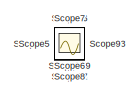
[diagram: root canvas - part 1/5, top left region]
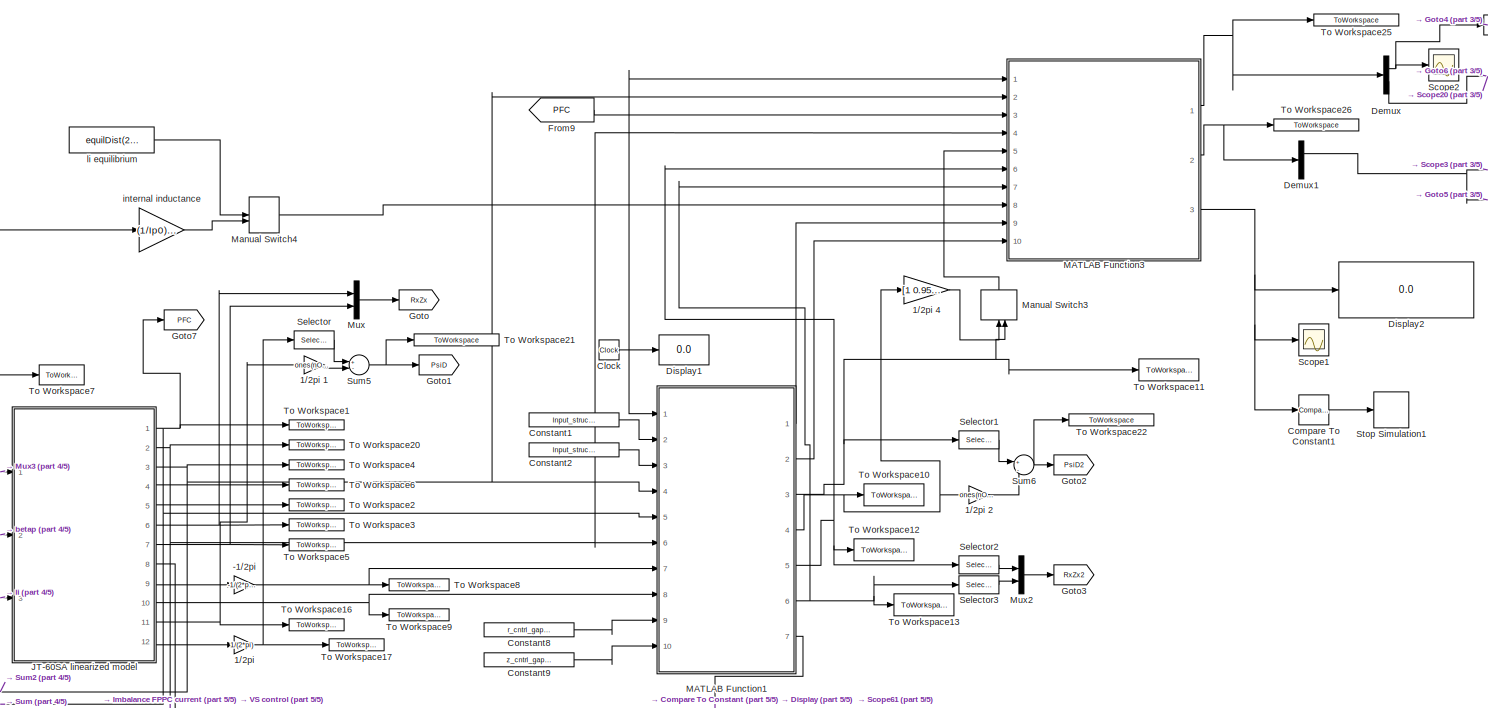
[diagram: root canvas - part 2/5, middle right region]
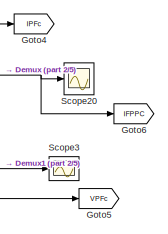
[diagram: root canvas - part 3/5, middle right region]
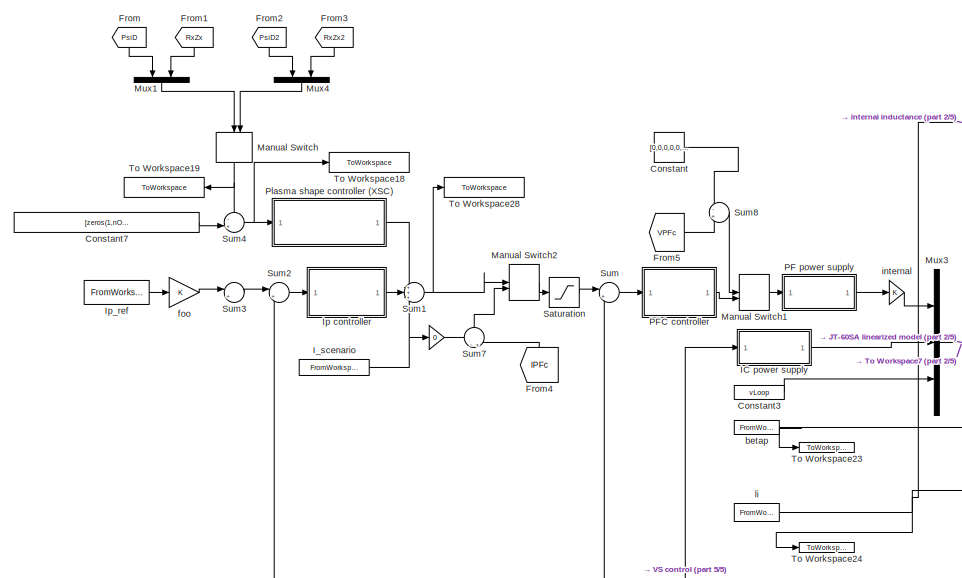
[diagram: root canvas - part 4/5, middle left region]
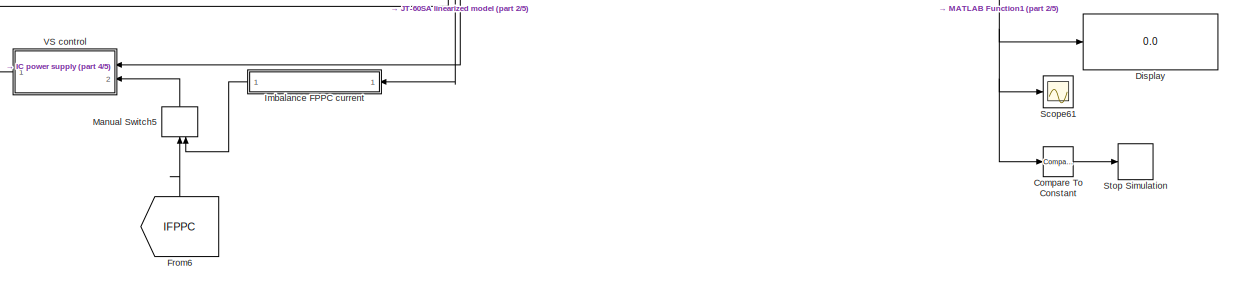
[diagram: root canvas - part 5/5, bottom center region]
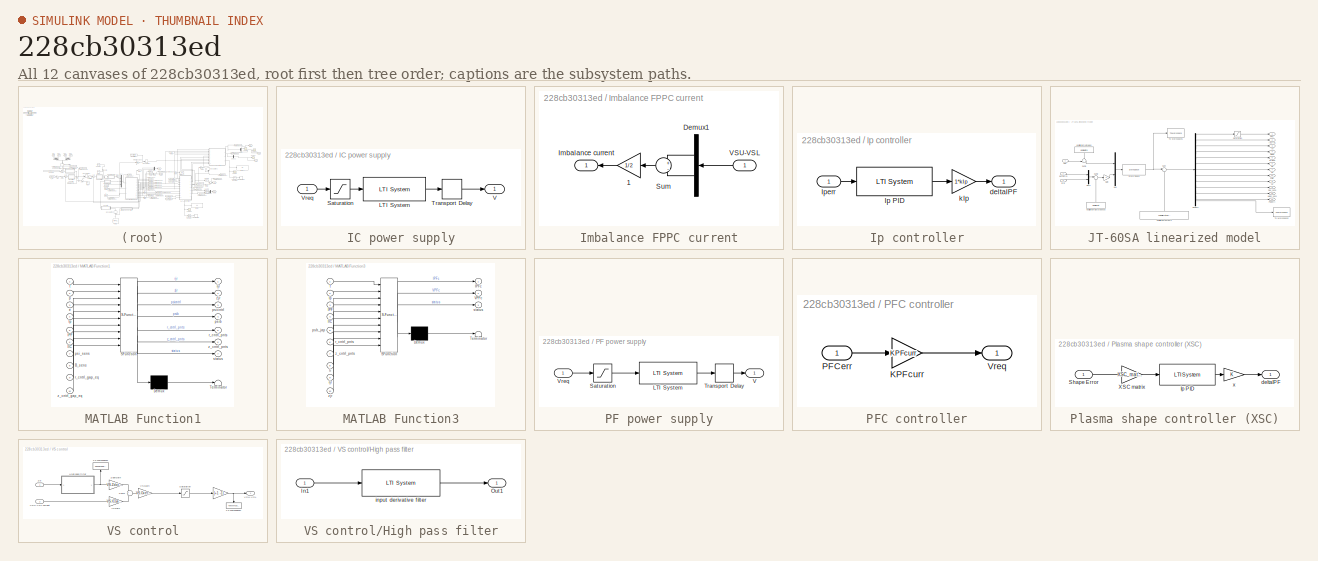
[diagram: thumbnail index - all 12 canvases of the model, root first then tree order]
MODEL slx_228cb30313ed
KIND model
CONFIG AbsTol = auto
CONFIG EnableMultiTasking = off
CONFIG FixedStep = auto
CONFIG MaxStep = auto
CONFIG MinStep = auto
CONFIG RelTol = 1e-3
CONFIG SampleTimeConstraint = Unconstrained
CONFIG Solver = VariableStepAuto
CONFIG SolverName = VariableStepAuto
CONFIG StartFcn = coder.extrinsic('system');\n system('./run4.csh')\n\n\n\n%disp('Called of the 1st part of the run.csh')
CONFIG StartTime = startTime-neg_time
CONFIG StopTime = stopTime
BLOCK [Gain]  
  Gain = 0
  OutDataTypeStr = Inherit: Inherit via internal rule
  ParamDataTypeStr = Inherit: Inherit via internal rule
  SaturateOnIntegerOverflow = off
BLOCK [Gain]  internal 
  OutDataTypeStr = Inherit: Inherit via internal rule
  ParamDataTypeStr = Inherit: Inherit via internal rule
  SaturateOnIntegerOverflow = off
BLOCK [Gain]  internal inductance
  Gain = (1/Ip0)+0*(4*pi*1e-7*2.97)/(2*Ip0)
  OutDataTypeStr = Inherit: Inherit via internal rule
  ParamDataTypeStr = Inherit: Inherit via internal rule
  SaturateOnIntegerOverflow = off
BLOCK [Gain] -1//2pi
  Gain = -1/(2*pi)
  OutDataTypeStr = Inherit: Inherit via internal rule
  ParamDataTypeStr = Inherit: Inherit via internal rule
  SaturateOnIntegerOverflow = off
BLOCK [Gain] 1//2pi 
  Gain = 1/(2*pi)
  OutDataTypeStr = Inherit: Inherit via internal rule
  ParamDataTypeStr = Inherit: Inherit via internal rule
  SaturateOnIntegerOverflow = off
BLOCK [Gain] 1//2pi 1
  Gain = ones(nOfFluxCntrl-1,1)
  OutDataTypeStr = Inherit: Inherit via internal rule
  ParamDataTypeStr = Inherit: Inherit via internal rule
  SaturateOnIntegerOverflow = off
BLOCK [Gain] 1//2pi 2
  Gain = ones(nOfFluxCntrl-1,1)
  OutDataTypeStr = Inherit: Inherit via internal rule
  ParamDataTypeStr = Inherit: Inherit via internal rule
  SaturateOnIntegerOverflow = off
BLOCK [Gain] 1//2pi 4
  Gain = [1 0.95 1 1 1 1 1 1 1]
  OutDataTypeStr = Inherit: Inherit via internal rule
  ParamDataTypeStr = Inherit: Inherit via internal rule
  SaturateOnIntegerOverflow = off
BLOCK [Clock] Clock
BLOCK [Reference] Compare To Constant  REF=simulink/Logic and Bit
Operations/Compare
To Constant
  Ports = [1, 1]
  SourceBlock = simulink/Logic and Bit\nOperations/Compare\nTo Constant
  SourceProductBaseCode = SL
  SourceProductName = Simulink
  SourceType = Compare To Constant
BLOCK [Reference] Compare To Constant1  REF=simulink/Logic and Bit
Operations/Compare
To Constant
  Ports = [1, 1]
  SourceBlock = simulink/Logic and Bit\nOperations/Compare\nTo Constant
  SourceProductBaseCode = SL
  SourceProductName = Simulink
  SourceType = Compare To Constant
BLOCK [Constant] Constant
  Value = [0,0,0,0,0,0,0,0,0,0]
BLOCK [Constant] Constant1
  Value = Input_struct.p
BLOCK [Constant] Constant2
  Value = Input_struct.e
BLOCK [Constant] Constant3
  Value = vLoop
BLOCK [Constant] Constant7
  Value = [zeros(1,nOfFluxCntrl-1) equilRxZx(1:2)']
BLOCK [Constant] Constant8
  Value = r_cntrl_gap_eq
BLOCK [Constant] Constant9
  Value = z_cntrl_gap_eq
BLOCK [Demux] Demux
  DisplayOption = bar
  Outputs = [10 2]
  Ports = [1, 2]
BLOCK [Demux] Demux1
  DisplayOption = bar
  Outputs = [10 2]
  Ports = [1, 2]
BLOCK [Display] Display
  Decimation = 1
  Ports = [1]
BLOCK [Display] Display1
  Decimation = 1
  Ports = [1]
BLOCK [Display] Display2
  Decimation = 1
  Ports = [1]
BLOCK [From] From
  GotoTag = PsiD
BLOCK [From] From1
  GotoTag = RxZx
BLOCK [From] From2
  GotoTag = PsiD2
BLOCK [From] From3
  GotoTag = RxZx2
BLOCK [From] From4
  GotoTag = IPFc
BLOCK [From] From5
  GotoTag = VPFc
BLOCK [From] From6
  GotoTag = IFPPC
BLOCK [From] From9
  GotoTag = PFC
BLOCK [Goto] Goto
  GotoTag = RxZx
BLOCK [Goto] Goto1
  GotoTag = PsiD
BLOCK [Goto] Goto2
  GotoTag = PsiD2
BLOCK [Goto] Goto3
  GotoTag = RxZx2
BLOCK [Goto] Goto4
  GotoTag = IPFc
BLOCK [Goto] Goto5
  GotoTag = VPFc
BLOCK [Goto] Goto6
  GotoTag = IFPPC
BLOCK [Goto] Goto7
  GotoTag = PFC
BLOCK [SubSystem] IC power supply
  Ports = [1, 1]
  RequestExecContextInheritance = off
BLOCK [Reference] IC power supply/LTI System  REF=cstblocks/LTI System
  Ports = [1, 1]
  SourceBlock = cstblocks/LTI System
  SourceProductBaseCode = CT
  SourceProductName = Control System Toolbox
  SourceType = LTI Block
BLOCK [Saturate] IC power supply/Saturation
  InputPortMap = u0
  LowerLimit = [-1e3 -1e3]
  Ports = [1, 1]
  UpperLimit = [1e3 1e3]
BLOCK [TransportDelay] IC power supply/Transport Delay
  DelayTime = PSdelay
  Ports = [1, 1]
BLOCK [Outport] IC power supply/V
  IconDisplay = Port number
BLOCK [Inport] IC power supply/Vreq
  IconDisplay = Port number
BLOCK [FromWorkspace] I_scenario
  OutputAfterFinalValue = Holding final value
  SampleTime = 0
  VariableName = IPF_scenario
  ZeroCross = on
BLOCK [SubSystem] Imbalance FPPC current
  Ports = [1, 1]
  RequestExecContextInheritance = off
BLOCK [Gain] Imbalance FPPC current/    1
  Gain = 1/2
  OutDataTypeStr = Inherit: Inherit via internal rule
  ParamDataTypeStr = Inherit: Inherit via internal rule
  SaturateOnIntegerOverflow = off
BLOCK [Demux] Imbalance FPPC current/Demux1
  DisplayOption = bar
  Outputs = 2
  Ports = [1, 2]
BLOCK [Outport] Imbalance FPPC current/Imbalance current
  IconDisplay = Port number
BLOCK [Sum] Imbalance FPPC current/Sum
  IconShape = round
  InputSameDT = off
  Inputs = +|-
  OutDataTypeStr = Inherit: Inherit via internal rule
  Ports = [2, 1]
  SaturateOnIntegerOverflow = off
BLOCK [Inport] Imbalance FPPC current/VSU-VSL
  IconDisplay = Port number
BLOCK [SubSystem] Ip controller
  Ports = [1, 1]
  RequestExecContextInheritance = off
BLOCK [Reference] Ip controller/Ip PID  REF=cstblocks/LTI System
  Ports = [1, 1]
  SourceBlock = cstblocks/LTI System
  SourceProductBaseCode = CT
  SourceProductName = Control System Toolbox
  SourceType = LTI Block
BLOCK [Inport] Ip controller/Iperr
  IconDisplay = Port number
BLOCK [Outport] Ip controller/deltaIPF
  IconDisplay = Port number
BLOCK [Gain] Ip controller/kIp
  Gain = 1*kIp
  Multiplication = Matrix(K*u)
  OutDataTypeStr = Inherit: Inherit via internal rule
  ParamDataTypeStr = Inherit: Inherit via internal rule
  SaturateOnIntegerOverflow = off
BLOCK [FromWorkspace] Ip_ref
  OutputAfterFinalValue = Holding final value
  SampleTime = 0
  VariableName = Ip_ref
  ZeroCross = on
BLOCK [SubSystem] JT-60SA linearized model
  Ports = [3, 12]
  RequestExecContextInheritance = off
BLOCK [Demux] JT-60SA linearized model/Demux1
  DisplayOption = bar
  Outputs = [10 2 1 nOfGaps nOfStrikes 1 1 1 1 nOfFluxSens nOfMagneticSens nOfFluxCntrl nXSC]
  Ports = [1, 13]
BLOCK [Outport] JT-60SA linearized model/Flux_sens
  IconDisplay = Port number
  Port = 9
BLOCK [Gain] JT-60SA linearized model/Gain
  Gain = 0
  OutDataTypeStr = Inherit: Inherit via internal rule
  ParamDataTypeStr = Inherit: Inherit via internal rule
  SaturateOnIntegerOverflow = off
BLOCK [Outport] JT-60SA linearized model/Gaps
  IconDisplay = Port number
  Port = 4
BLOCK [Outport] JT-60SA linearized model/ISU-ISL
  IconDisplay = Port number
  Port = 2
BLOCK [Outport] JT-60SA linearized model/Ip
  IconDisplay = Port number
  Port = 3
BLOCK [Outport] JT-60SA linearized model/Magn_sens
  IconDisplay = Port number
  Port = 10
BLOCK [Mux] JT-60SA linearized model/Mux
  DisplayOption = bar
  Inputs = 2
  Ports = [2, 1]
BLOCK [Mux] JT-60SA linearized model/Mux1
  DisplayOption = bar
  Inputs = 2
  Ports = [2, 1]
BLOCK [Outport] JT-60SA linearized model/PFC
  IconDisplay = Port number
BLOCK [Outport] JT-60SA linearized model/PsiB
  IconDisplay = Port number
  Port = 11
BLOCK [Outport] JT-60SA linearized model/PsiCntrl
  IconDisplay = Port number
  Port = 12
BLOCK [Outport] JT-60SA linearized model/Rx
  IconDisplay = Port number
  Port = 6
BLOCK [Saturate] JT-60SA linearized model/Saturation
  InputPortMap = u0
  LowerLimit = I_sat_lower
  Ports = [1, 1]
  UpperLimit = I_sat_upper
BLOCK [StateSpace] JT-60SA linearized model/State-Space
  A = A_contr
  B = B_contr
  C = [C_contr; C_XSC_full]
  D = [D_contr; zeros(nXSC,size(D_contr,2))]
  InitialCondition = xi0
  Ports = [1, 1]
BLOCK [Outport] JT-60SA linearized model/Strikes
  IconDisplay = Port number
  Port = 5
BLOCK [Sum] JT-60SA linearized model/Sum
  IconShape = round
  InputSameDT = off
  Inputs = |++
  OutDataTypeStr = Inherit: Inherit via internal rule
  Ports = [2, 1]
  SaturateOnIntegerOverflow = off
BLOCK [Sum] JT-60SA linearized model/Sum2
  IconShape = round
  InputSameDT = off
  Inputs = |+-
  OutDataTypeStr = Inherit: Inherit via internal rule
  Ports = [2, 1]
  SaturateOnIntegerOverflow = off
BLOCK [Sum] JT-60SA linearized model/Sum3
  IconShape = round
  InputSameDT = off
  Inputs = -+|
  OutDataTypeStr = Inherit: Inherit via internal rule
  Ports = [2, 1]
  SaturateOnIntegerOverflow = off
BLOCK [ToWorkspace] JT-60SA linearized model/To Workspace1
  FixptAsFi = on
  MaxDataPoints = inf
  Ports = [1]
  SampleTime = -1
  Save2DSignal = 3-D array (concatenate along third dimension)
  SaveFormat = Structure With Time
  VariableName = deltaOutputs
BLOCK [ToWorkspace] JT-60SA linearized model/To Workspace2
  FixptAsFi = on
  MaxDataPoints = inf
  Ports = [1]
  SampleTime = -1
  Save2DSignal = 3-D array (concatenate along third dimension)
  SaveFormat = Structure With Time
  VariableName = simXSCout1
BLOCK [Inport] JT-60SA linearized model/VPF
  IconDisplay = Port number
BLOCK [Outport] JT-60SA linearized model/Zc
  IconDisplay = Port number
  Port = 8
BLOCK [Outport] JT-60SA linearized model/Zx
  IconDisplay = Port number
  Port = 7
BLOCK [Inport] JT-60SA linearized model/betap*Ip
  IconDisplay = Port number
  Port = 2
BLOCK [Constant] JT-60SA linearized model/equilibrium disturbances
  Value = equilDist
BLOCK [Constant] JT-60SA linearized model/equilibrium outputs
  Value = [equilOutputs; eqXSC]
BLOCK [Constant] JT-60SA linearized model/equilibrium voltages
  Value = equilVolts
BLOCK [Inport] JT-60SA linearized model/li*Ip
  IconDisplay = Port number
  Port = 3
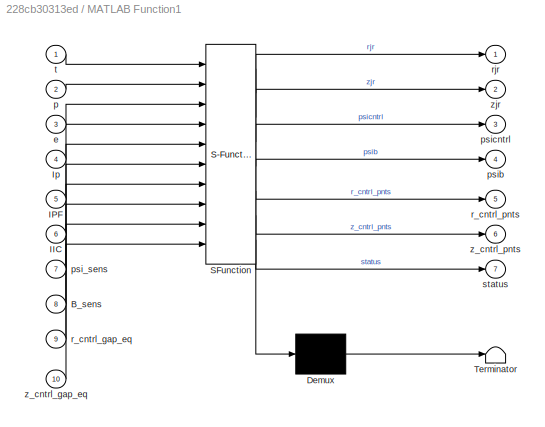
BLOCK [SubSystem] MATLAB Function1
  Description = CCS
  ErrorFcn = Stateflow.Translate.translate
  PermitHierarchicalResolution = ExplicitOnly
  Ports = [10, 7]
  RequestExecContextInheritance = off
  SFBlockType = MATLAB Function
  StartFcn = close all\nfigure(1)
  SystemSampleTime = 10e-3
  TreatAsAtomicUnit = on
BLOCK [Demux] MATLAB Function1/ Demux 
  Outputs = 1
  Ports = [1, 1]
BLOCK [S-Function] MATLAB Function1/ SFunction 
  EnableBusSupport = on
  FunctionName = sf_sfun
  PortCounts = [10 8]
  Ports = [10, 8]
  SFcnIsStateOwnerBlock = off
  SFunctionDeploymentMode = off
  Tag = Stateflow S-Function JT_60SA_scheme_isoflux_CCS_FBC 1
BLOCK [Terminator] MATLAB Function1/ Terminator 
BLOCK [Inport] MATLAB Function1/B_sens
  IconDisplay = Port number
  Port = 8
BLOCK [Inport] MATLAB Function1/IIC
  IconDisplay = Port number
  Port = 6
BLOCK [Inport] MATLAB Function1/IPF
  IconDisplay = Port number
  Port = 5
BLOCK [Inport] MATLAB Function1/Ip
  IconDisplay = Port number
  Port = 4
BLOCK [Inport] MATLAB Function1/e
  IconDisplay = Port number
  Port = 3
BLOCK [Inport] MATLAB Function1/p
  IconDisplay = Port number
  Port = 2
BLOCK [Inport] MATLAB Function1/psi_sens
  IconDisplay = Port number
  Port = 7
BLOCK [Outport] MATLAB Function1/psib
  IconDisplay = Port number
  Port = 4
BLOCK [Outport] MATLAB Function1/psicntrl
  IconDisplay = Port number
  Port = 3
BLOCK [Inport] MATLAB Function1/r_cntrl_gap_eq
  IconDisplay = Port number
  Port = 9
BLOCK [Outport] MATLAB Function1/r_cntrl_pnts
  IconDisplay = Port number
  Port = 5
BLOCK [Outport] MATLAB Function1/rjr
  IconDisplay = Port number
BLOCK [Outport] MATLAB Function1/status
  IconDisplay = Port number
  Port = 7
BLOCK [Inport] MATLAB Function1/t
  IconDisplay = Port number
BLOCK [Inport] MATLAB Function1/z_cntrl_gap_eq
  IconDisplay = Port number
  Port = 10
BLOCK [Outport] MATLAB Function1/z_cntrl_pnts
  IconDisplay = Port number
  Port = 6
BLOCK [Outport] MATLAB Function1/zjr
  IconDisplay = Port number
  Port = 2
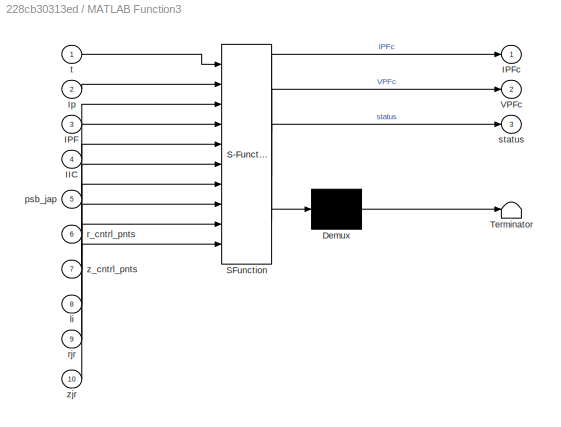
BLOCK [SubSystem] MATLAB Function3
  Description = CCS
  ErrorFcn = Stateflow.Translate.translate
  PermitHierarchicalResolution = ExplicitOnly
  Ports = [10, 3]
  RequestExecContextInheritance = off
  SFBlockType = MATLAB Function
  StartFcn = close all\nfigure(1)
  SystemSampleTime = 10e-3
  TreatAsAtomicUnit = on
BLOCK [Demux] MATLAB Function3/ Demux 
  Outputs = 1
  Ports = [1, 1]
BLOCK [S-Function] MATLAB Function3/ SFunction 
  EnableBusSupport = on
  FunctionName = sf_sfun
  PortCounts = [10 4]
  Ports = [10, 4]
  SFcnIsStateOwnerBlock = off
  SFunctionDeploymentMode = off
  Tag = Stateflow S-Function JT_60SA_scheme_isoflux_CCS_FBC 4
BLOCK [Terminator] MATLAB Function3/ Terminator 
BLOCK [Inport] MATLAB Function3/IIC
  IconDisplay = Port number
  Port = 4
BLOCK [Inport] MATLAB Function3/IPF
  IconDisplay = Port number
  Port = 3
BLOCK [Outport] MATLAB Function3/IPFc
  IconDisplay = Port number
BLOCK [Inport] MATLAB Function3/Ip
  IconDisplay = Port number
  Port = 2
BLOCK [Outport] MATLAB Function3/VPFc
  IconDisplay = Port number
  Port = 2
BLOCK [Inport] MATLAB Function3/li
  IconDisplay = Port number
  Port = 8
BLOCK [Inport] MATLAB Function3/psb_jap
  IconDisplay = Port number
  Port = 5
BLOCK [Inport] MATLAB Function3/r_cntrl_pnts
  IconDisplay = Port number
  Port = 6
BLOCK [Inport] MATLAB Function3/rjr
  IconDisplay = Port number
  Port = 9
BLOCK [Outport] MATLAB Function3/status
  IconDisplay = Port number
  Port = 3
BLOCK [Inport] MATLAB Function3/t
  IconDisplay = Port number
BLOCK [Inport] MATLAB Function3/z_cntrl_pnts
  IconDisplay = Port number
  Port = 7
BLOCK [Inport] MATLAB Function3/zjr
  IconDisplay = Port number
  Port = 10
BLOCK [ManualSwitch] Manual Switch
  CurrentSetting = 0
BLOCK [ManualSwitch] Manual Switch1
BLOCK [ManualSwitch] Manual Switch2
  CurrentSetting = 0
BLOCK [ManualSwitch] Manual Switch3
  CurrentSetting = 0
BLOCK [ManualSwitch] Manual Switch4
BLOCK [ManualSwitch] Manual Switch5
BLOCK [Mux] Mux
  DisplayOption = bar
  Inputs = 2
  Ports = [2, 1]
BLOCK [Mux] Mux1
  DisplayOption = bar
  Inputs = [nOfFluxCntrl-1 2]
  Ports = [2, 1]
BLOCK [Mux] Mux2
  DisplayOption = bar
  Inputs = 2
  Ports = [2, 1]
BLOCK [Mux] Mux3
  DisplayOption = bar
  Inputs = 3
  Ports = [3, 1]
BLOCK [Mux] Mux4
  DisplayOption = bar
  Inputs = [nOfFluxCntrl-1 2]
  Ports = [2, 1]
BLOCK [SubSystem] PF power supply
  Ports = [1, 1]
  RequestExecContextInheritance = off
BLOCK [Reference] PF power supply/LTI System  REF=cstblocks/LTI System
  Ports = [1, 1]
  SourceBlock = cstblocks/LTI System
  SourceProductBaseCode = CT
  SourceProductName = Control System Toolbox
  SourceType = LTI Block
BLOCK [Saturate] PF power supply/Saturation
  InputPortMap = u0
  LowerLimit = -[CSsat EFsat]
  Ports = [1, 1]
  UpperLimit = [CSsat EFsat]
BLOCK [TransportDelay] PF power supply/Transport Delay
  DelayTime = PSdelay
  Ports = [1, 1]
BLOCK [Outport] PF power supply/V
  IconDisplay = Port number
BLOCK [Inport] PF power supply/Vreq
  IconDisplay = Port number
BLOCK [SubSystem] PFC controller
  Ports = [1, 1]
  RequestExecContextInheritance = off
BLOCK [Gain] PFC controller/KPFcurr
  Gain = KPFcurr
  Multiplication = Matrix(K*u)
  OutDataTypeStr = Inherit: Inherit via internal rule
  ParamDataTypeStr = Inherit: Inherit via internal rule
  SaturateOnIntegerOverflow = off
BLOCK [Inport] PFC controller/PFCerr
  IconDisplay = Port number
BLOCK [Outport] PFC controller/Vreq
  IconDisplay = Port number
BLOCK [SubSystem] Plasma shape controller (XSC)
  Ports = [1, 1]
  RequestExecContextInheritance = off
BLOCK [Reference] Plasma shape controller (XSC)/Ip PID  REF=cstblocks/LTI System
  Ports = [1, 1]
  SourceBlock = cstblocks/LTI System
  SourceProductBaseCode = CT
  SourceProductName = Control System Toolbox
  SourceType = LTI Block
BLOCK [Inport] Plasma shape controller (XSC)/Shape Error
  IconDisplay = Port number
BLOCK [Gain] Plasma shape controller (XSC)/XSC matrix
  Gain = XSC_matrix
  Multiplication = Matrix(K*u)
  OutDataTypeStr = Inherit: Inherit via internal rule
  ParamDataTypeStr = Inherit: Inherit via internal rule
  SaturateOnIntegerOverflow = off
BLOCK [Outport] Plasma shape controller (XSC)/deltaIPF
  IconDisplay = Port number
BLOCK [Gain] Plasma shape controller (XSC)/x
  OutDataTypeStr = Inherit: Inherit via internal rule
  ParamDataTypeStr = Inherit: Inherit via internal rule
  SaturateOnIntegerOverflow = off
BLOCK [Saturate] Saturation
  InputPortMap = u0
  LowerLimit = I_sat_lower
  Ports = [1, 1]
  UpperLimit = I_sat_upper
BLOCK [Scope] Scope
  Floating = off
  IOType = viewer
  NumInputPorts = 1
  Ports = []
  ScopeSpecificationString = Simulink.scopes.TimeScopeBlockCfg('CurrentConfiguration', extmgr.ConfigurationSet(extmgr.Configuration('Core','General UI',true),extmgr.Configuration('Core','Source UI',true),extmgr.Configuration('Sources','WiredSimulink',true,'DataLoggingVariableName','ScopeData1'),extmgr.Configuration('Visuals','Time Domain',true,'SerializedDisplays',{struct('MinYLimReal','-21421.52997','MaxYLimReal','18313.7697...<+1750ch>
BLOCK [Scope] Scope1
  Floating = off
  NumInputPorts = 1
  Ports = [1]
  ScopeSpecificationString = Simulink.scopes.TimeScopeBlockCfg('CurrentConfiguration', extmgr.ConfigurationSet(extmgr.Configuration('Core','General UI',true),extmgr.Configuration('Core','Source UI',true),extmgr.Configuration('Sources','WiredSimulink',true,'DataLoggingVariableName','ScopeData1'),extmgr.Configuration('Visuals','Time Domain',true,'SerializedDisplays',{struct('MinYLimReal','-0.125','MaxYLimReal','1.125','YLabelRe...<+1424ch>
BLOCK [Scope] Scope10
  Floating = off
  IOType = viewer
  NumInputPorts = 1
  Ports = []
  ScopeSpecificationString = Simulink.scopes.TimeScopeBlockCfg('CurrentConfiguration', extmgr.ConfigurationSet(extmgr.Configuration('Core','General UI',true),extmgr.Configuration('Core','Source UI',true),extmgr.Configuration('Sources','WiredSimulink',true,'DataLoggingVariableName','ScopeData8'),extmgr.Configuration('Visuals','Time Domain',true,'SerializedDisplays',{struct('MinYLimReal','1.47395','MaxYLimReal','4.46545','YLabe...<+1714ch>
BLOCK [Scope] Scope11
  Floating = off
  IOType = viewer
  NumInputPorts = 1
  Ports = []
  ScopeSpecificationString = Simulink.scopes.TimeScopeBlockCfg('CurrentConfiguration', extmgr.ConfigurationSet(extmgr.Configuration('Core','General UI',true),extmgr.Configuration('Core','Source UI',true),extmgr.Configuration('Sources','WiredSimulink',true,'DataLoggingVariableName','ScopeData9'),extmgr.Configuration('Visuals','Time Domain',true,'SerializedDisplays',{struct('MinYLimReal','-0.04361','MaxYLimReal','0.06659','YLab...<+1434ch>
BLOCK [Scope] Scope12
  Floating = off
  IOType = viewer
  NumInputPorts = 1
  Ports = []
  ScopeSpecificationString = Simulink.scopes.TimeScopeBlockCfg('CurrentConfiguration', extmgr.ConfigurationSet(extmgr.Configuration('Core','General UI',true),extmgr.Configuration('Core','Source UI',true),extmgr.Configuration('Sources','WiredSimulink',true,'DataLoggingVariableName','ScopeData10'),extmgr.Configuration('Visuals','Time Domain',true,'SerializedDisplays',{struct('MinYLimReal','-0.2146','MaxYLimReal','0.13116','YLab...<+1676ch>
BLOCK [Scope] Scope13
  Floating = off
  IOType = viewer
  NumInputPorts = 1
  Ports = []
  ScopeSpecificationString = Simulink.scopes.TimeScopeBlockCfg('CurrentConfiguration', extmgr.ConfigurationSet(extmgr.Configuration('Core','General UI',true),extmgr.Configuration('Core','Source UI',true),extmgr.Configuration('Sources','WiredSimulink',true,'DataLoggingVariableName','ScopeData11'),extmgr.Configuration('Visuals','Time Domain',true,'SerializedDisplays',{struct('MinYLimReal','2.95296','MaxYLimReal','3.02377','YLab...<+1403ch>
BLOCK [Scope] Scope14
  Floating = off
  IOType = viewer
  NumInputPorts = 1
  Ports = []
  ScopeSpecificationString = Simulink.scopes.TimeScopeBlockCfg('CurrentConfiguration', extmgr.ConfigurationSet(extmgr.Configuration('Core','General UI',true),extmgr.Configuration('Core','Source UI',true),extmgr.Configuration('Sources','WiredSimulink',true,'DataLoggingVariableName','ScopeData12'),extmgr.Configuration('Visuals','Time Domain',true,'SerializedDisplays',{struct('MinYLimReal','0.01174','MaxYLimReal','0.07796','YLab...<+1432ch>
BLOCK [Scope] Scope15
  Floating = off
  IOType = viewer
  NumInputPorts = 1
  Ports = []
  ScopeSpecificationString = Simulink.scopes.TimeScopeBlockCfg('CurrentConfiguration', extmgr.ConfigurationSet(extmgr.Configuration('Core','General UI',true),extmgr.Configuration('Core','Source UI',true),extmgr.Configuration('Sources','WiredSimulink',true,'DataLoggingVariableName','ScopeData13'),extmgr.Configuration('Visuals','Time Domain',true,'SerializedDisplays',{struct('MinYLimReal','0.75383','MaxYLimReal','0.95383','YLab...<+1461ch>
BLOCK [Scope] Scope16
  Floating = off
  IOType = viewer
  NumInputPorts = 1
  Ports = []
  ScopeSpecificationString = Simulink.scopes.TimeScopeBlockCfg('CurrentConfiguration', extmgr.ConfigurationSet(extmgr.Configuration('Core','General UI',true),extmgr.Configuration('Core','Source UI',true),extmgr.Configuration('Sources','WiredSimulink',true,'DataLoggingVariableName','ScopeData14'),extmgr.Configuration('Visuals','Time Domain',true,'SerializedDisplays',{struct('MinYLimReal','0.77419','MaxYLimReal','0.86268','YLab...<+1432ch>
BLOCK [Scope] Scope17
  Floating = off
  IOType = viewer
  NumInputPorts = 1
  Ports = []
  ScopeSpecificationString = Simulink.scopes.TimeScopeBlockCfg('CurrentConfiguration', extmgr.ConfigurationSet(extmgr.Configuration('Core','General UI',true),extmgr.Configuration('Core','Source UI',true),extmgr.Configuration('Sources','WiredSimulink',true,'DataLoggingVariableName','ScopeData15'),extmgr.Configuration('Visuals','Time Domain',true,'SerializedDisplays',{struct('MinYLimReal','-1625.00000','MaxYLimReal','1625.00000...<+1585ch>
BLOCK [Scope] Scope18
  Floating = off
  IOType = viewer
  NumInputPorts = 1
  Ports = []
  ScopeSpecificationString = Simulink.scopes.TimeScopeBlockCfg('CurrentConfiguration', extmgr.ConfigurationSet(extmgr.Configuration('Core','General UI',true),extmgr.Configuration('Core','Source UI',true),extmgr.Configuration('Sources','WiredSimulink',true,'DataLoggingVariableName','ScopeData16'),extmgr.Configuration('Visuals','Time Domain',true,'SerializedDisplays',{struct('MinYLimReal','-22293.65425','MaxYLimReal','16915.312...<+1479ch>
BLOCK [Scope] Scope19
  Floating = off
  IOType = viewer
  NumInputPorts = 1
  Ports = []
  ScopeSpecificationString = Simulink.scopes.TimeScopeBlockCfg('CurrentConfiguration', extmgr.ConfigurationSet(extmgr.Configuration('Core','General UI',true),extmgr.Configuration('Core','Source UI',true),extmgr.Configuration('Sources','WiredSimulink',true,'DataLoggingVariableName','ScopeData17'),extmgr.Configuration('Visuals','Time Domain',true,'SerializedDisplays',{struct('MinYLimReal','-12319.32024','MaxYLimReal','8609.8238...<+1496ch>
BLOCK [Scope] Scope2
  Floating = off
  NumInputPorts = 1
  Ports = [1]
  ScopeSpecificationString = Simulink.scopes.TimeScopeBlockCfg('CurrentConfiguration', extmgr.ConfigurationSet(extmgr.Configuration('Core','General UI',true),extmgr.Configuration('Core','Source UI',true),extmgr.Configuration('Sources','WiredSimulink',true,'DataLoggingVariableName','ScopeData2'),extmgr.Configuration('Visuals','Time Domain',true,'SerializedDisplays',{struct('MinYLimReal','-20635.41361','MaxYLimReal','15476.2755...<+1579ch>
BLOCK [Scope] Scope20
  Floating = off
  NumInputPorts = 1
  Ports = [1]
  ScopeSpecificationString = Simulink.scopes.TimeScopeBlockCfg('CurrentConfiguration', extmgr.ConfigurationSet(extmgr.Configuration('Core','General UI',true),extmgr.Configuration('Core','Source UI',true),extmgr.Configuration('Sources','WiredSimulink',true,'DataLoggingVariableName','ScopeData3'),extmgr.Configuration('Visuals','Time Domain',true,'SerializedDisplays',{struct('MinYLimReal','-91.5089','MaxYLimReal','77.43313','YLa...<+1453ch>
BLOCK [Scope] Scope21
  Floating = off
  IOType = viewer
  NumInputPorts = 1
  Ports = []
  ScopeSpecificationString = Simulink.scopes.TimeScopeBlockCfg('CurrentConfiguration', extmgr.ConfigurationSet(extmgr.Configuration('Core','General UI',true),extmgr.Configuration('Core','Source UI',true),extmgr.Configuration('Sources','WiredSimulink',true,'DataLoggingVariableName','ScopeData18'),extmgr.Configuration('Visuals','Time Domain',true,'SerializedDisplays',{struct('MinYLimReal','-15601.17491','MaxYLimReal','8235.2404...<+1725ch>
BLOCK [Scope] Scope22
  Floating = off
  IOType = viewer
  NumInputPorts = 1
  Ports = []
  ScopeSpecificationString = Simulink.scopes.TimeScopeBlockCfg('CurrentConfiguration', extmgr.ConfigurationSet(extmgr.Configuration('Core','General UI',true),extmgr.Configuration('Core','Source UI',true),extmgr.Configuration('Sources','WiredSimulink',true,'DataLoggingVariableName','ScopeData19'),extmgr.Configuration('Visuals','Time Domain',true,'SerializedDisplays',{struct('MinYLimReal','-0.0994','MaxYLimReal','0.22872','YLab...<+1499ch>
BLOCK [Scope] Scope23
  Floating = off
  IOType = viewer
  NumInputPorts = 1
  Ports = []
  ScopeSpecificationString = Simulink.scopes.TimeScopeBlockCfg('CurrentConfiguration', extmgr.ConfigurationSet(extmgr.Configuration('Core','General UI',true),extmgr.Configuration('Core','Source UI',true),extmgr.Configuration('Sources','WiredSimulink',true,'DataLoggingVariableName','ScopeData20'),extmgr.Configuration('Visuals','Time Domain',true,'SerializedDisplays',{struct('MinYLimReal','2258258.56914','MaxYLimReal','2986872....<+1465ch>
BLOCK [Scope] Scope24
  Floating = off
  IOType = viewer
  NumInputPorts = 1
  Ports = []
  ScopeSpecificationString = Simulink.scopes.TimeScopeBlockCfg('CurrentConfiguration', extmgr.ConfigurationSet(extmgr.Configuration('Core','General UI',true),extmgr.Configuration('Core','Source UI',true),extmgr.Configuration('Sources','WiredSimulink',true,'DataLoggingVariableName','ScopeData21'),extmgr.Configuration('Visuals','Time Domain',true,'SerializedDisplays',{struct('MinYLimReal','4258052.4434','MaxYLimReal','4744728.0...<+1433ch>
BLOCK [Scope] Scope25
  Floating = off
  IOType = viewer
  NumInputPorts = 1
  Ports = []
  ScopeSpecificationString = Simulink.scopes.TimeScopeBlockCfg('CurrentConfiguration', extmgr.ConfigurationSet(extmgr.Configuration('Core','General UI',true),extmgr.Configuration('Core','Source UI',true),extmgr.Configuration('Sources','WiredSimulink',true,'DataLoggingVariableName','ScopeData22'),extmgr.Configuration('Visuals','Time Domain',true,'SerializedDisplays',{struct('MinYLimReal','-1624.99999','MaxYLimReal','1624.9999'...<+1494ch>
BLOCK [Scope] Scope26
  Floating = off
  IOType = viewer
  NumInputPorts = 1
  Ports = []
  ScopeSpecificationString = Simulink.scopes.TimeScopeBlockCfg('CurrentConfiguration', extmgr.ConfigurationSet(extmgr.Configuration('Core','General UI',true),extmgr.Configuration('Core','Source UI',true),extmgr.Configuration('Sources','WiredSimulink',true,'DataLoggingVariableName','ScopeData1'),extmgr.Configuration('Visuals','Time Domain',true,'SerializedDisplays',{struct('MinYLimReal','-872.69575','MaxYLimReal','872.69575','...<+1464ch>
BLOCK [Scope] Scope27
  Floating = off
  IOType = viewer
  NumInputPorts = 1
  Ports = []
  ScopeSpecificationString = Simulink.scopes.TimeScopeBlockCfg('CurrentConfiguration', extmgr.ConfigurationSet(extmgr.Configuration('Core','General UI',true),extmgr.Configuration('Core','Source UI',true),extmgr.Configuration('Sources','WiredSimulink',true,'DataLoggingVariableName','ScopeData1'),extmgr.Configuration('Visuals','Time Domain',true,'SerializedDisplays',{struct('MinYLimReal','0.01238','MaxYLimReal','0.0788','YLabel...<+1433ch>
BLOCK [Scope] Scope3
  Floating = off
  NumInputPorts = 1
  Ports = [1]
  ScopeSpecificationString = Simulink.scopes.TimeScopeBlockCfg('CurrentConfiguration', extmgr.ConfigurationSet(extmgr.Configuration('Core','General UI',true),extmgr.Configuration('Core','Source UI',true),extmgr.Configuration('Sources','WiredSimulink',true,'DataLoggingVariableName','ScopeData7'),extmgr.Configuration('Visuals','Time Domain',true,'SerializedDisplays',{struct('MinYLimReal','-305024.05838','MaxYLimReal','403018.70...<+1599ch>
BLOCK [Scope] Scope4
  Floating = off
  IOType = viewer
  NumInputPorts = 1
  Ports = []
  ScopeSpecificationString = Simulink.scopes.TimeScopeBlockCfg('CurrentConfiguration', extmgr.ConfigurationSet(extmgr.Configuration('Core','General UI',true),extmgr.Configuration('Core','Source UI',true),extmgr.Configuration('Sources','WiredSimulink',true,'DataLoggingVariableName','ScopeData2'),extmgr.Configuration('Visuals','Time Domain',true,'SerializedDisplays',{struct('MinYLimReal','-6275.87196','MaxYLimReal','6751.43153'...<+1494ch>
BLOCK [Scope] Scope5
  Floating = off
  IOType = viewer
  NumInputPorts = 1
  Ports = []
  ScopeSpecificationString = Simulink.scopes.TimeScopeBlockCfg('CurrentConfiguration', extmgr.ConfigurationSet(extmgr.Configuration('Core','General UI',true),extmgr.Configuration('Core','Source UI',true),extmgr.Configuration('Sources','WiredSimulink',true,'DataLoggingVariableName','ScopeData3'),extmgr.Configuration('Visuals','Time Domain',true,'SerializedDisplays',{struct('MinYLimReal','5380616.70355','MaxYLimReal','5753223.8...<+1485ch>
BLOCK [Scope] Scope6
  Floating = off
  IOType = viewer
  NumInputPorts = 1
  Ports = []
  ScopeSpecificationString = Simulink.scopes.TimeScopeBlockCfg('CurrentConfiguration', extmgr.ConfigurationSet(extmgr.Configuration('Core','General UI',true),extmgr.Configuration('Core','Source UI',true),extmgr.Configuration('Sources','WiredSimulink',true,'DataLoggingVariableName','ScopeData4'),extmgr.Configuration('Visuals','Time Domain',true,'SerializedDisplays',{struct('MinYLimReal','-0.07073','MaxYLimReal','0.93547','YLab...<+4120ch>
BLOCK [Scope] Scope61
  Floating = off
  NumInputPorts = 1
  Ports = [1]
  ScopeSpecificationString = Simulink.scopes.TimeScopeBlockCfg('CurrentConfiguration', extmgr.ConfigurationSet(extmgr.Configuration('Core','General UI',true),extmgr.Configuration('Core','Source UI',true),extmgr.Configuration('Sources','WiredSimulink',true),extmgr.Configuration('Visuals','Time Domain',true,'SerializedDisplays',{struct('MinYLimReal','-0.125','MaxYLimReal','1.125','YLabelReal','','MinYLimMag','0.00000','MaxYLimM...<+1385ch>
BLOCK [Scope] Scope7
  Floating = off
  IOType = viewer
  NumInputPorts = 1
  Ports = []
  ScopeSpecificationString = Simulink.scopes.TimeScopeBlockCfg('CurrentConfiguration', extmgr.ConfigurationSet(extmgr.Configuration('Core','General UI',true),extmgr.Configuration('Core','Source UI',true),extmgr.Configuration('Sources','WiredSimulink',true,'DataLoggingVariableName','ScopeData5'),extmgr.Configuration('Visuals','Time Domain',true,'SerializedDisplays',{struct('MinYLimReal','-0.04299','MaxYLimReal','0.06893','YLab...<+1440ch>
BLOCK [Scope] Scope8
  Floating = off
  IOType = viewer
  NumInputPorts = 1
  Ports = []
  ScopeSpecificationString = Simulink.scopes.TimeScopeBlockCfg('CurrentConfiguration', extmgr.ConfigurationSet(extmgr.Configuration('Core','General UI',true),extmgr.Configuration('Core','Source UI',true),extmgr.Configuration('Sources','WiredSimulink',true,'DataLoggingVariableName','ScopeData6'),extmgr.Configuration('Visuals','Time Domain',true,'SerializedDisplays',{struct('MinYLimReal','-1.41795','MaxYLimReal','0.84162','YLab...<+1698ch>
BLOCK [Scope] Scope9
  Floating = off
  IOType = viewer
  NumInputPorts = 1
  Ports = []
  ScopeSpecificationString = Simulink.scopes.TimeScopeBlockCfg('CurrentConfiguration', extmgr.ConfigurationSet(extmgr.Configuration('Core','General UI',true),extmgr.Configuration('Core','Source UI',true),extmgr.Configuration('Sources','WiredSimulink',true,'DataLoggingVariableName','ScopeData7'),extmgr.Configuration('Visuals','Time Domain',true,'SerializedDisplays',{struct('MinYLimReal','-3.16719','MaxYLimReal','1.95969','YLab...<+1716ch>
BLOCK [Selector] Selector
  IndexOptions = Index vector (dialog)
  Indices = [2:nOfFluxCntrl]
  InputPortWidth = nOfFluxCntrl
  OutputSizes = 1
  Ports = [1, 1]
BLOCK [Selector] Selector1
  IndexOptions = Index vector (dialog)
  Indices = [2:nOfFluxCntrl]
  InputPortWidth = nOfFluxCntrl
  OutputSizes = 1
  Ports = [1, 1]
BLOCK [Selector] Selector2
  IndexOptions = Index vector (dialog)
  Indices = 1
  InputPortWidth = nOfFluxCntrl
  OutputSizes = 1
  Ports = [1, 1]
BLOCK [Selector] Selector3
  IndexOptions = Index vector (dialog)
  Indices = 1
  InputPortWidth = nOfFluxCntrl
  OutputSizes = 1
  Ports = [1, 1]
BLOCK [Stop] Stop Simulation
BLOCK [Stop] Stop Simulation1
BLOCK [Sum] Sum
  IconShape = round
  InputSameDT = off
  Inputs = |+-
  OutDataTypeStr = Inherit: Inherit via internal rule
  Ports = [2, 1]
  SaturateOnIntegerOverflow = off
BLOCK [Sum] Sum1
  IconShape = round
  InputSameDT = off
  Inputs = +++
  OutDataTypeStr = Inherit: Inherit via internal rule
  Ports = [3, 1]
  SaturateOnIntegerOverflow = off
BLOCK [Sum] Sum2
  IconShape = round
  InputSameDT = off
  Inputs = |+-
  OutDataTypeStr = Inherit: Inherit via internal rule
  Ports = [2, 1]
  SaturateOnIntegerOverflow = off
BLOCK [Sum] Sum3
  IconShape = round
  InputSameDT = off
  Inputs = |++
  OutDataTypeStr = Inherit: Inherit via internal rule
  Ports = [2, 1]
  SaturateOnIntegerOverflow = off
BLOCK [Sum] Sum4
  IconShape = round
  InputSameDT = off
  Inputs = -+|
  OutDataTypeStr = Inherit: Inherit via internal rule
  Ports = [2, 1]
  SaturateOnIntegerOverflow = off
BLOCK [Sum] Sum5
  IconShape = round
  InputSameDT = off
  Inputs = +-|
  OutDataTypeStr = Inherit: Inherit via internal rule
  Ports = [2, 1]
  SaturateOnIntegerOverflow = off
BLOCK [Sum] Sum6
  IconShape = round
  InputSameDT = off
  Inputs = +|-
  OutDataTypeStr = Inherit: Inherit via internal rule
  Ports = [2, 1]
  SaturateOnIntegerOverflow = off
BLOCK [Sum] Sum7
  IconShape = round
  InputSameDT = off
  Inputs = -+
  OutDataTypeStr = Inherit: Inherit via internal rule
  Ports = [2, 1]
  SaturateOnIntegerOverflow = off
BLOCK [Sum] Sum8
  IconShape = round
  InputSameDT = off
  Inputs = -+
  OutDataTypeStr = Inherit: Inherit via internal rule
  Ports = [2, 1]
  SaturateOnIntegerOverflow = off
BLOCK [ToWorkspace] To Workspace1
  FixptAsFi = on
  MaxDataPoints = inf
  Ports = [1]
  SampleTime = -1
  Save2DSignal = 3-D array (concatenate along third dimension)
  SaveFormat = Structure With Time
  VariableName = simPFC
BLOCK [ToWorkspace] To Workspace10
  FixptAsFi = on
  MaxDataPoints = inf
  Ports = [1]
  SampleTime = -1
  Save2DSignal = 3-D array (concatenate along third dimension)
  SaveFormat = Structure With Time
  VariableName = psb_jap
BLOCK [ToWorkspace] To Workspace11
  FixptAsFi = on
  MaxDataPoints = inf
  Ports = [1]
  SampleTime = -1
  Save2DSignal = 3-D array (concatenate along third dimension)
  SaveFormat = Structure With Time
  VariableName = psc_jap
BLOCK [ToWorkspace] To Workspace12
  FixptAsFi = on
  MaxDataPoints = inf
  Ports = [1]
  SampleTime = -1
  Save2DSignal = 3-D array (concatenate along third dimension)
  SaveFormat = Structure With Time
  VariableName = r_cntrl_pnts
BLOCK [ToWorkspace] To Workspace13
  FixptAsFi = on
  MaxDataPoints = inf
  Ports = [1]
  SampleTime = -1
  Save2DSignal = 3-D array (concatenate along third dimension)
  SaveFormat = Structure With Time
  VariableName = z_cntrl_pnts
BLOCK [ToWorkspace] To Workspace16
  FixptAsFi = on
  MaxDataPoints = inf
  Ports = [1]
  SampleTime = -1
  Save2DSignal = 3-D array (concatenate along third dimension)
  SaveFormat = Structure With Time
  VariableName = simPsiB
BLOCK [ToWorkspace] To Workspace17
  FixptAsFi = on
  MaxDataPoints = inf
  Ports = [1]
  SampleTime = -1
  Save2DSignal = 3-D array (concatenate along third dimension)
  SaveFormat = Structure With Time
  VariableName = simFluxCntrl
BLOCK [ToWorkspace] To Workspace18
  FixptAsFi = on
  MaxDataPoints = inf
  Ports = [1]
  SampleTime = -1
  Save2DSignal = 3-D array (concatenate along third dimension)
  SaveFormat = Structure With Time
  VariableName = simfluxRxZxError
BLOCK [ToWorkspace] To Workspace19
  FixptAsFi = on
  MaxDataPoints = inf
  Ports = [1]
  SampleTime = -1
  Save2DSignal = 3-D array (concatenate along third dimension)
  SaveFormat = Structure With Time
  VariableName = simDataCompXSC
BLOCK [ToWorkspace] To Workspace2
  FixptAsFi = on
  MaxDataPoints = inf
  Ports = [1]
  SampleTime = -1
  Save2DSignal = 3-D array (concatenate along third dimension)
  SaveFormat = Structure With Time
  VariableName = simStrikes
BLOCK [ToWorkspace] To Workspace20
  FixptAsFi = on
  MaxDataPoints = inf
  Ports = [1]
  SampleTime = -1
  Save2DSignal = 3-D array (concatenate along third dimension)
  SaveFormat = Structure With Time
  VariableName = simIIC
BLOCK [ToWorkspace] To Workspace21
  FixptAsFi = on
  MaxDataPoints = inf
  Ports = [1]
  SampleTime = -1
  Save2DSignal = 3-D array (concatenate along third dimension)
  SaveFormat = Structure With Time
  VariableName = simPsiDiff_CREATE
BLOCK [ToWorkspace] To Workspace22
  FixptAsFi = on
  MaxDataPoints = inf
  Ports = [1]
  SampleTime = -1
  Save2DSignal = 3-D array (concatenate along third dimension)
  SaveFormat = Structure With Time
  VariableName = simPsiDiff_CCS
BLOCK [ToWorkspace] To Workspace23
  FixptAsFi = on
  MaxDataPoints = inf
  Ports = [1]
  SampleTime = -1
  Save2DSignal = 3-D array (concatenate along third dimension)
  SaveFormat = Structure With Time
  VariableName = simbetap
BLOCK [ToWorkspace] To Workspace24
  FixptAsFi = on
  MaxDataPoints = inf
  Ports = [1]
  SampleTime = -1
  Save2DSignal = 3-D array (concatenate along third dimension)
  SaveFormat = Structure With Time
  VariableName = simli
BLOCK [ToWorkspace] To Workspace25
  FixptAsFi = on
  MaxDataPoints = inf
  Ports = [1]
  SampleTime = -1
  Save2DSignal = 3-D array (concatenate along third dimension)
  SaveFormat = Structure With Time
  VariableName = simIPFc
BLOCK [ToWorkspace] To Workspace26
  FixptAsFi = on
  MaxDataPoints = inf
  Ports = [1]
  SampleTime = -1
  Save2DSignal = 3-D array (concatenate along third dimension)
  SaveFormat = Structure With Time
  VariableName = simVPFc
BLOCK [ToWorkspace] To Workspace28
  FixptAsFi = on
  MaxDataPoints = inf
  Ports = [1]
  SampleTime = -1
  Save2DSignal = 3-D array (concatenate along third dimension)
  SaveFormat = Structure With Time
  VariableName = simCurrCont
BLOCK [ToWorkspace] To Workspace3
  FixptAsFi = on
  MaxDataPoints = inf
  Ports = [1]
  SampleTime = -1
  Save2DSignal = 3-D array (concatenate along third dimension)
  SaveFormat = Structure With Time
  VariableName = simRx
BLOCK [ToWorkspace] To Workspace4
  FixptAsFi = on
  MaxDataPoints = inf
  Ports = [1]
  SampleTime = -1
  Save2DSignal = 3-D array (concatenate along third dimension)
  SaveFormat = Structure With Time
  VariableName = simIp
BLOCK [ToWorkspace] To Workspace5
  FixptAsFi = on
  MaxDataPoints = inf
  Ports = [1]
  SampleTime = -1
  Save2DSignal = 3-D array (concatenate along third dimension)
  SaveFormat = Structure With Time
  VariableName = simZx
BLOCK [ToWorkspace] To Workspace6
  FixptAsFi = on
  MaxDataPoints = inf
  Ports = [1]
  SampleTime = -1
  Save2DSignal = 3-D array (concatenate along third dimension)
  SaveFormat = Structure With Time
  VariableName = simGaps
BLOCK [ToWorkspace] To Workspace7
  FixptAsFi = on
  MaxDataPoints = inf
  Ports = [1]
  SampleTime = -1
  Save2DSignal = 3-D array (concatenate along third dimension)
  SaveFormat = Structure With Time
  VariableName = simVPF
BLOCK [ToWorkspace] To Workspace8
  FixptAsFi = on
  MaxDataPoints = inf
  Ports = [1]
  SampleTime = -1
  Save2DSignal = 3-D array (concatenate along third dimension)
  SaveFormat = Structure With Time
  VariableName = simFluxSens
BLOCK [ToWorkspace] To Workspace9
  FixptAsFi = on
  MaxDataPoints = inf
  Ports = [1]
  SampleTime = -1
  Save2DSignal = 3-D array (concatenate along third dimension)
  SaveFormat = Structure With Time
  VariableName = simMagnSens
BLOCK [SubSystem] VS control
  Ports = [2, 1]
  RequestExecContextInheritance = off
BLOCK [Gain] VS control/    
  Gain = [+1 -1]
  OutDataTypeStr = Inherit: Inherit via internal rule
  ParamDataTypeStr = Inherit: Inherit via internal rule
  SaturateOnIntegerOverflow = off
BLOCK [SubSystem] VS control/High pass filter
  Ports = [1, 1]
  RequestExecContextInheritance = off
BLOCK [Inport] VS control/High pass filter/In1
  IconDisplay = Port number
BLOCK [Outport] VS control/High pass filter/Out1
  IconDisplay = Port number
BLOCK [Reference] VS control/High pass filter/input derivative filter  REF=cstblocks/LTI System
  Ports = [1, 1]
  SourceBlock = cstblocks/LTI System
  SourceProductBaseCode = CT
  SourceProductName = Control System Toolbox
  SourceType = LTI Block
BLOCK [Gain] VS control/ICGain
  Gain = VS.ICGain
  OutDataTypeStr = Inherit: Inherit via internal rule
  ParamDataTypeStr = Inherit: Inherit via internal rule
  SaturateOnIntegerOverflow = off
BLOCK [Saturate] VS control/Saturation
  InputPortMap = u0
  LowerLimit = -1e3
  Ports = [1, 1]
  UpperLimit = 1e3
BLOCK [Sum] VS control/Sum1
  IconShape = round
  InputSameDT = off
  Inputs = +|+
  OutDataTypeStr = Inherit: Inherit via internal rule
  Ports = [2, 1]
  SaturateOnIntegerOverflow = off
BLOCK [ToWorkspace] VS control/To Workspace1
  FixptAsFi = on
  MaxDataPoints = inf
  Ports = [1]
  SampleTime = -1
  Save2DSignal = 3-D array (concatenate along third dimension)
  SaveFormat = Structure With Time
  VariableName = simZdot1
BLOCK [ToWorkspace] VS control/To Workspace7
  FixptAsFi = on
  MaxDataPoints = inf
  Ports = [1]
  SampleTime = -1
  Save2DSignal = 3-D array (concatenate along third dimension)
  SaveFormat = Structure With Time
  VariableName = simVC1
BLOCK [Gain] VS control/VSGain
  Gain = VS.OverallGain
  OutDataTypeStr = Inherit: Inherit via internal rule
  ParamDataTypeStr = Inherit: Inherit via internal rule
  SaturateOnIntegerOverflow = off
BLOCK [Outport] VS control/VSU-VSL
  IconDisplay = Port number
BLOCK [Inport] VS control/VSU-VSL current
  IconDisplay = Port number
  Port = 2
BLOCK [Gain] VS control/ZdotGain
  Gain = VS.ZdotGain
  OutDataTypeStr = Inherit: Inherit via internal rule
  ParamDataTypeStr = Inherit: Inherit via internal rule
  SaturateOnIntegerOverflow = off
BLOCK [Inport] VS control/Zp
  IconDisplay = Port number
BLOCK [FromWorkspace] betap
  OutputAfterFinalValue = Holding final value
  SampleTime = 0
  VariableName = betap
  ZeroCross = on
BLOCK [Gain] foo
  Multiplication = Matrix(K*u)
  OutDataTypeStr = Inherit: Inherit via internal rule
  ParamDataTypeStr = Inherit: Inherit via internal rule
  SaturateOnIntegerOverflow = off
BLOCK [FromWorkspace] li
  OutputAfterFinalValue = Holding final value
  SampleTime = 0
  VariableName = li
  ZeroCross = on
BLOCK [Constant] li equilibrium
  Value = equilDist(2)/Ip0
LINE  :1 -> Sum7:1
LINE  internal :1 -> Mux3:1
LINE  internal inductance:1 -> Manual Switch4:2
NET -1//2pi:1 -> MATLAB Function1:7, To Workspace8:1
LINE 1//2pi 1:1 -> Sum5:2
LINE 1//2pi 2:1 -> Sum6:2
LINE 1//2pi 4:1 -> Manual Switch3:1
NET 1//2pi :1 -> Selector:1, To Workspace17:1
NET Clock:1 -> Display1:1, MATLAB Function1:1, MATLAB Function3:1
LINE Compare To Constant1:1 -> Stop Simulation1:1
LINE Compare To Constant:1 -> Stop Simulation:1
LINE Constant1:1 -> MATLAB Function1:2
LINE Constant2:1 -> MATLAB Function1:3
LINE Constant3:1 -> Mux3:3
LINE Constant7:1 -> Sum4:2
LINE Constant8:1 -> MATLAB Function1:9
LINE Constant9:1 -> MATLAB Function1:10
LINE Constant:1 -> Sum8:1
NET Demux1:1 -> Goto5:1, Scope3:1
NET Demux:1 -> Goto4:1, Scope2:1
NET Demux:2 -> Goto6:1, Scope20:1
LINE From1:1 -> Mux1:2
LINE From2:1 -> Mux4:1
LINE From3:1 -> Mux4:2
LINE From4:1 -> Sum7:2
LINE From5:1 -> Sum8:2
LINE From6:1 -> Manual Switch5:1
LINE From9:1 -> MATLAB Function3:3
LINE From:1 -> Mux1:1
LINE IC power supply/LTI System:1 -> IC power supply/Transport Delay:1
LINE IC power supply/Saturation:1 -> IC power supply/LTI System:1
LINE IC power supply/Transport Delay:1 -> IC power supply/V:1
LINE IC power supply/Vreq:1 -> IC power supply/Saturation:1
LINE IC power supply:1 -> Mux3:2
NET I_scenario:1 ->  :1, Sum1:3
LINE Imbalance FPPC current/    1:1 -> Imbalance FPPC current/Imbalance current:1
LINE Imbalance FPPC current/Demux1:1 -> Imbalance FPPC current/Sum:1
LINE Imbalance FPPC current/Demux1:2 -> Imbalance FPPC current/Sum:2
LINE Imbalance FPPC current/Sum:1 -> Imbalance FPPC current/    1:1
LINE Imbalance FPPC current/VSU-VSL:1 -> Imbalance FPPC current/Demux1:1
LINE Imbalance FPPC current:1 -> Manual Switch5:2
LINE Ip controller/Ip PID:1 -> Ip controller/kIp:1
LINE Ip controller/Iperr:1 -> Ip controller/Ip PID:1
LINE Ip controller/kIp:1 -> Ip controller/deltaIPF:1
LINE Ip controller:1 -> Sum1:2
LINE Ip_ref:1 -> foo:1
LINE JT-60SA linearized model/Demux1:1 -> JT-60SA linearized model/Saturation:1
LINE JT-60SA linearized model/Demux1:10 -> JT-60SA linearized model/Flux_sens:1
LINE JT-60SA linearized model/Demux1:11 -> JT-60SA linearized model/Magn_sens:1
LINE JT-60SA linearized model/Demux1:12 -> JT-60SA linearized model/PsiCntrl:1
LINE JT-60SA linearized model/Demux1:13 -> JT-60SA linearized model/To Workspace2:1
LINE JT-60SA linearized model/Demux1:2 -> JT-60SA linearized model/ISU-ISL:1
LINE JT-60SA linearized model/Demux1:3 -> JT-60SA linearized model/Ip:1
LINE JT-60SA linearized model/Demux1:4 -> JT-60SA linearized model/Gaps:1
LINE JT-60SA linearized model/Demux1:5 -> JT-60SA linearized model/Strikes:1
LINE JT-60SA linearized model/Demux1:6 -> JT-60SA linearized model/Rx:1
LINE JT-60SA linearized model/Demux1:7 -> JT-60SA linearized model/Zx:1
LINE JT-60SA linearized model/Demux1:8 -> JT-60SA linearized model/PsiB:1
LINE JT-60SA linearized model/Demux1:9 -> JT-60SA linearized model/Zc:1
LINE JT-60SA linearized model/Gain:1 -> JT-60SA linearized model/Mux:2
LINE JT-60SA linearized model/Mux1:1 -> JT-60SA linearized model/Sum2:1
LINE JT-60SA linearized model/Mux:1 -> JT-60SA linearized model/State-Space:1
LINE JT-60SA linearized model/Saturation:1 -> JT-60SA linearized model/PFC:1
NET JT-60SA linearized model/State-Space:1 -> JT-60SA linearized model/Sum:1, JT-60SA linearized model/To Workspace1:1
LINE JT-60SA linearized model/Sum2:1 -> JT-60SA linearized model/Gain:1
LINE JT-60SA linearized model/Sum3:1 -> JT-60SA linearized model/Mux:1
LINE JT-60SA linearized model/Sum:1 -> JT-60SA linearized model/Demux1:1
LINE JT-60SA linearized model/VPF:1 -> JT-60SA linearized model/Sum3:2
LINE JT-60SA linearized model/betap*Ip:1 -> JT-60SA linearized model/Mux1:1
LINE JT-60SA linearized model/equilibrium disturbances:1 -> JT-60SA linearized model/Sum2:2
LINE JT-60SA linearized model/equilibrium outputs:1 -> JT-60SA linearized model/Sum:2
LINE JT-60SA linearized model/equilibrium voltages:1 -> JT-60SA linearized model/Sum3:1
LINE JT-60SA linearized model/li*Ip:1 -> JT-60SA linearized model/Mux1:2
NET JT-60SA linearized model:1 -> Goto7:1, MATLAB Function1:5, Sum:2, To Workspace1:1
NET JT-60SA linearized model:10 -> MATLAB Function1:8, To Workspace9:1
NET JT-60SA linearized model:11 -> 1//2pi 1:1, To Workspace16:1
LINE JT-60SA linearized model:12 -> 1//2pi :1
NET JT-60SA linearized model:2 -> Imbalance FPPC current:1, MATLAB Function1:6, MATLAB Function3:4, To Workspace20:1
NET JT-60SA linearized model:3 -> MATLAB Function1:4, MATLAB Function3:2, Sum2:2, To Workspace4:1
LINE JT-60SA linearized model:4 -> To Workspace6:1
LINE JT-60SA linearized model:5 -> To Workspace2:1
NET JT-60SA linearized model:6 -> Mux:1, To Workspace3:1
NET JT-60SA linearized model:7 -> Mux:2, To Workspace5:1
LINE JT-60SA linearized model:8 -> VS control:1
LINE JT-60SA linearized model:9 -> -1//2pi:1
LINE MATLAB Function1:1 -> MATLAB Function3:9
LINE MATLAB Function1:2 -> MATLAB Function3:10
NET MATLAB Function1:3 -> Manual Switch3:2, Selector1:1, To Workspace11:1
NET MATLAB Function1:4 -> 1//2pi 2:1, 1//2pi 4:1, To Workspace10:1
NET MATLAB Function1:5 -> MATLAB Function3:6, Selector2:1, To Workspace12:1
NET MATLAB Function1:6 -> MATLAB Function3:7, Selector3:1, To Workspace13:1
NET MATLAB Function1:7 -> Compare To Constant:1, Display:1, Scope61:1
NET MATLAB Function3:1 -> Demux:1, To Workspace25:1
NET MATLAB Function3:2 -> Demux1:1, To Workspace26:1
NET MATLAB Function3:3 -> Compare To Constant1:1, Display2:1, Scope1:1
LINE Manual Switch1:1 -> PF power supply:1
LINE Manual Switch2:1 -> Saturation:1
LINE Manual Switch3:1 -> MATLAB Function3:5
LINE Manual Switch4:1 -> MATLAB Function3:8
LINE Manual Switch5:1 -> VS control:2
NET Manual Switch:1 -> Sum4:1, To Workspace19:1
LINE Mux1:1 -> Manual Switch:1
LINE Mux2:1 -> Goto3:1
NET Mux3:1 -> JT-60SA linearized model:1, To Workspace7:1
LINE Mux4:1 -> Manual Switch:2
LINE Mux:1 -> Goto:1
LINE PF power supply/LTI System:1 -> PF power supply/Transport Delay:1
LINE PF power supply/Saturation:1 -> PF power supply/LTI System:1
LINE PF power supply/Transport Delay:1 -> PF power supply/V:1
LINE PF power supply/Vreq:1 -> PF power supply/Saturation:1
LINE PF power supply:1 ->  internal :1
LINE PFC controller/KPFcurr:1 -> PFC controller/Vreq:1
LINE PFC controller/PFCerr:1 -> PFC controller/KPFcurr:1
LINE PFC controller:1 -> Manual Switch1:2
LINE Plasma shape controller (XSC)/Ip PID:1 -> Plasma shape controller (XSC)/x:1
LINE Plasma shape controller (XSC)/Shape Error:1 -> Plasma shape controller (XSC)/XSC matrix:1
LINE Plasma shape controller (XSC)/XSC matrix:1 -> Plasma shape controller (XSC)/Ip PID:1
LINE Plasma shape controller (XSC)/x:1 -> Plasma shape controller (XSC)/deltaIPF:1
LINE Plasma shape controller (XSC):1 -> Sum1:1
LINE Saturation:1 -> Sum:1
LINE Selector1:1 -> Sum6:1
LINE Selector2:1 -> Mux2:1
LINE Selector3:1 -> Mux2:2
LINE Selector:1 -> Sum5:1
NET Sum1:1 -> Manual Switch2:1, To Workspace28:1
LINE Sum2:1 -> Ip controller:1
LINE Sum3:1 -> Sum2:1
NET Sum4:1 -> Plasma shape controller (XSC):1, To Workspace18:1
NET Sum5:1 -> Goto1:1, To Workspace21:1
NET Sum6:1 -> Goto2:1, To Workspace22:1
LINE Sum7:1 -> Manual Switch2:2
LINE Sum8:1 -> Manual Switch1:1
LINE Sum:1 -> PFC controller:1
NET VS control/    :1 -> VS control/To Workspace7:1, VS control/VSU-VSL:1
LINE VS control/High pass filter/In1:1 -> VS control/High pass filter/input derivative filter:1
LINE VS control/High pass filter/input derivative filter:1 -> VS control/High pass filter/Out1:1
NET VS control/High pass filter:1 -> VS control/To Workspace1:1, VS control/ZdotGain:1
LINE VS control/ICGain:1 -> VS control/Sum1:2
LINE VS control/Saturation:1 -> VS control/    :1
LINE VS control/Sum1:1 -> VS control/VSGain:1
LINE VS control/VSGain:1 -> VS control/Saturation:1
LINE VS control/VSU-VSL current:1 -> VS control/ICGain:1
LINE VS control/ZdotGain:1 -> VS control/Sum1:1
LINE VS control/Zp:1 -> VS control/High pass filter:1
LINE VS control:1 -> IC power supply:1
NET betap:1 -> JT-60SA linearized model:2, To Workspace23:1
LINE foo:1 -> Sum3:1
LINE li equilibrium:1 -> Manual Switch4:1
NET li:1 ->  internal inductance:1, JT-60SA linearized model:3, To Workspace24:1
note: NET lines group one-source signal fan-out (src -> all destinations, sorted); 1:1 wires keep LINE
CHART MATLAB Function1 states=1 transitions=1
  STATE_LABEL 'eML_blk_kernel()'
  STATE_LABEL "SCRIPT:\nfunction [rjr,zjr,psicntrl,psib,r_cntrl_pnts,z_cntrl_pnts,status]= fcn(t,p,e,Ip,IPF,IIC,psi_sens,B_sens,r_cntrl_gap_eq,z_cntrl_gap_eq)\n\ncoder.extrinsic('system');\ncoder.extrinsic('run');\ncoder.extrinsic('num2str');\ncoder.extrinsic('pdemesh');\n% coder.extrinsic('fscanf');\n% coder.extrinsic('regexp');\n% coder.extrinsic('int8');\n% coder.extrinsic('fopen');\n\n\n%%%%Fill the fort.70\n\n%% Dummy dat...<+3608ch>"
CHART MATLAB Function3 states=1 transitions=1
  STATE_LABEL 'eML_blk_kernel()'
  STATE_LABEL "SCRIPT:\n function [IPFc,VPFc,status]= fcn(t,Ip,IPF,IIC,psb_jap,r_cntrl_pnts,z_cntrl_pnts,li,rjr,zjr)\n\ncoder.extrinsic('system');\ncoder.extrinsic('run');\ncoder.extrinsic('num2str');\ncoder.extrinsic('pdemesh');\n% % coder.extrinsic('fscanf');\n% % coder.extrinsic('regexp');\n% % coder.extrinsic('int8');\n% % coder.extrinsic('fopen');\n% \n% \n% %%%%Fill the fort.70\n% \n% %% Dummy data\n% % Ip = 5.5; %%is alr...<+716ch>"
